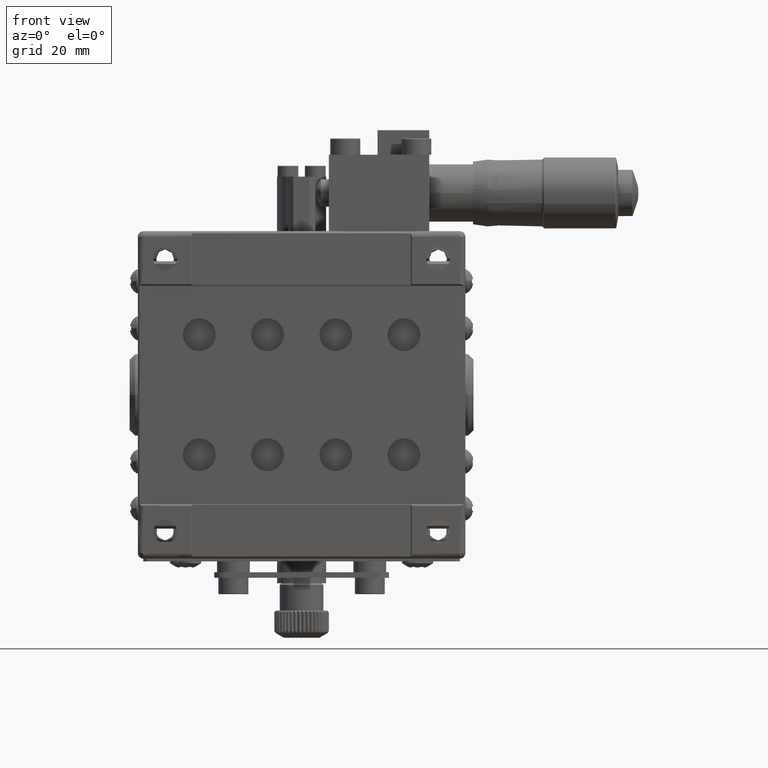
[diagram: clean part render]
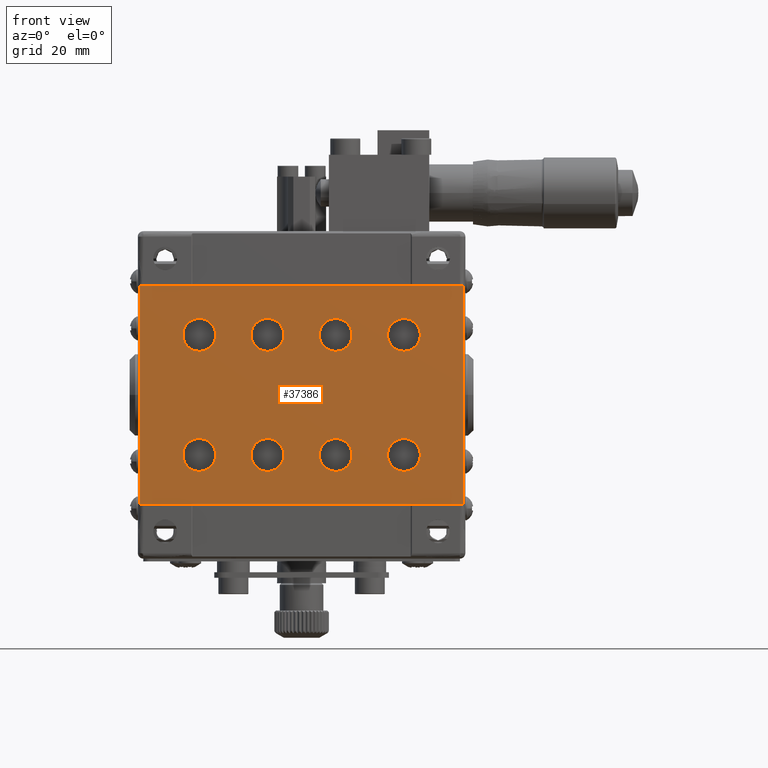
[diagram: same view with one face highlighted and labeled with its STEP entity id]
A machine part, front view. The second image highlights one B-rep face of the part: STEP entity #37386.
In plain terms, the highlighted planar face has unit normal (0, -1, 0).
Its self-contained STEP definition (entity closure, byte-faithful):
#117 = LINE ( 'NONE', #40002, #23402 ) ;
#331 = CARTESIAN_POINT ( 'NONE',  ( -7.723574979837233734, -99.70000000000001705, 8.356833977184933815 ) ) ;
#369 = CARTESIAN_POINT ( 'NONE',  ( 9.185563783559542728, -99.70000000000000284, -10.26500672246602441 ) ) ;
#417 = CARTESIAN_POINT ( 'NONE',  ( -6.249999999999970690, -99.70000000000003126, -8.000000000000000000 ) ) ;
#488 = CARTESIAN_POINT ( 'NONE',  ( 21.75000000000004263, -99.70000000000003126, 11.35355339059327306 ) ) ;
#577 = CARTESIAN_POINT ( 'NONE',  ( -19.48499327753394894, -99.70000000000004547, -13.93556378355951431 ) ) ;
#859 = CARTESIAN_POINT ( 'NONE',  ( -15.81443621644046438, -99.70000000000003126, 11.73499327753398092 ) ) ;
#1025 = CARTESIAN_POINT ( 'NONE',  ( -16.92157287525377640, -99.70000000000003126, -13.41421356237309404 ) ) ;
#1151 = CARTESIAN_POINT ( 'NONE',  ( 3.314436216440508787, -99.70000000000004547, 10.26500672246602974 ) ) ;
#1222 = CARTESIAN_POINT ( 'NONE',  ( -16.10683397718490539, -99.70000000000004547, 12.47357497983726660 ) ) ;
#1495 = CARTESIAN_POINT ( 'NONE',  ( 6.603553390593311256, -99.70000000000004547, -14.00000000000000000 ) ) ;
#1527 = CARTESIAN_POINT ( 'NONE',  ( -3.835786437626875323, -99.70000000000004547, 9.171572875253810153 ) ) ;
#1538 = CARTESIAN_POINT ( 'NONE',  ( -6.249999999999970690, -99.70000000000003126, -14.00000000000000000 ) ) ;
#1590 = VERTEX_POINT ( 'NONE', #56597 ) ;
#1607 = CARTESIAN_POINT ( 'NONE',  ( -15.81443621644045727, -99.70000000000004547, 10.26500672246602974 ) ) ;
#2012 = B_SPLINE_CURVE_WITH_KNOTS ( 'NONE', 3,
 ( #43037, #7400, #19417, #67055, #36459, #47723, #1222, #859, #6655, #54682, #1607, #42282, #18651, #12833, #25245, #24858, #13983, #41893 ),
 .UNSPECIFIED., .F., .F.,
 ( 4, 2, 2, 2, 2, 2, 2, 2, 4 ),
 ( 0.000000000000000000, 1.178097245096171974, 2.356194490192343949, 3.534291735288515923, 4.712388980384687898, 5.890486225480859872, 7.068583470577031846, 8.246680715673203821, 9.424777960769375795 ),
 .UNSPECIFIED. ) ;
#2014 = CARTESIAN_POINT ( 'NONE',  ( -8.893166022815044869, -99.70000000000004547, -12.47357497983725949 ) ) ;
#2028 = CARTESIAN_POINT ( 'NONE',  ( 21.39316602281510882, -99.70000000000003126, -9.526425020162736956 ) ) ;
#2306 = CARTESIAN_POINT ( 'NONE',  ( 4.421572875253843904, -99.70000000000003126, 8.585786437626904188 ) ) ;
#2555 = CARTESIAN_POINT ( 'NONE',  ( 16.92157287525384746, -99.70000000000003126, 8.585786437626904188 ) ) ;
#2691 = CARTESIAN_POINT ( 'NONE',  ( 5.515006722466055500, -99.70000000000001705, 13.93556378355952852 ) ) ;
#2746 = VERTEX_POINT ( 'NONE', #14860 ) ;
#4732 = CARTESIAN_POINT ( 'NONE',  ( -20.22357497983723107, -99.70000000000001705, 8.356833977184933815 ) ) ;
#4949 = CARTESIAN_POINT ( 'NONE',  ( 6.603553390593310368, -99.69999999999998863, 14.00000000000000000 ) ) ;
#5335 = CARTESIAN_POINT ( 'NONE',  ( 7.723574979837294130, -99.70000000000001705, 13.64316602281507329 ) ) ;
#5536 = B_SPLINE_CURVE_WITH_KNOTS ( 'NONE', 3,
 ( #50411, #8568, #50788, #49657, #38399, #74016, #2014, #20968, #44213, #20595, #62013, #68224, #8950, #9326, #32940, #32189, #67461, #15151 ),
 .UNSPECIFIED., .F., .F.,
 ( 4, 2, 2, 2, 2, 2, 2, 2, 4 ),
 ( -9.424777960769375795, -8.246680715673203821, -7.068583470577031846, -5.890486225480859872, -4.712388980384687898, -3.534291735288515923, -2.356194490192343949, -1.178097245096171974, 0.000000000000000000 ),
 .UNSPECIFIED. ) ;
#5602 = LINE ( 'NONE', #18716, #54547 ) ;
#5630 = CARTESIAN_POINT ( 'NONE',  ( -20.57842712474614899, -99.70000000000003126, -8.585786437626905965 ) ) ;
#5903 = CARTESIAN_POINT ( 'NONE',  ( 5.896446609406762462, -99.70000000000001705, -14.00000000000000178 ) ) ;
#6080 = CARTESIAN_POINT ( 'NONE',  ( -18.39644660940668786, -99.70000000000004547, -7.999999999999998224 ) ) ;
#6086 = CARTESIAN_POINT ( 'NONE',  ( 9.250000000000033751, -99.70000000000000284, 10.64644660940672516 ) ) ;
#6291 = CARTESIAN_POINT ( 'NONE',  ( 21.68556378355956582, -99.70000000000000284, 11.73499327753398092 ) ) ;
#6364 = EDGE_CURVE ( 'NONE', #39464, #17795, #41070, .T. ) ;
#6493 = CARTESIAN_POINT ( 'NONE',  ( 6.250000000000039968, -99.70000000000001705, 7.999999999999998224 ) ) ;
#6655 = CARTESIAN_POINT ( 'NONE',  ( -15.74999999999997513, -99.70000000000004547, 11.35355339059327306 ) ) ;
#6820 = CARTESIAN_POINT ( 'NONE',  ( -15.74999999999996803, -99.70000000000003126, -11.35355339059327662 ) ) ;
#6954 = CARTESIAN_POINT ( 'NONE',  ( 3.835786437626938827, -99.70000000000001705, 9.171572875253810153 ) ) ;
#7286 = CARTESIAN_POINT ( 'NONE',  ( 8.664213562373129562, -99.70000000000001705, -12.82842712474618807 ) ) ;
#7326 = CARTESIAN_POINT ( 'NONE',  ( -3.249999999999961364, -99.70000000000004547, -10.64644660940672694 ) ) ;
#7400 = CARTESIAN_POINT ( 'NONE',  ( -18.39644660940668786, -99.70000000000004547, 14.00000000000000000 ) ) ;
#7426 = EDGE_CURVE ( 'NONE', #17795, #39464, #32663, .T. ) ;
#7436 = CARTESIAN_POINT ( 'NONE',  ( 21.68556378355956227, -99.70000000000001705, -11.73499327753397026 ) ) ;
#7581 = CARTESIAN_POINT ( 'NONE',  ( -17.27642502016270498, -99.70000000000004547, -13.64316602281506263 ) ) ;
#7719 = CARTESIAN_POINT ( 'NONE',  ( -5.896446609406697625, -99.70000000000003126, -14.00000000000000000 ) ) ;
#7814 = CARTESIAN_POINT ( 'NONE',  ( 19.48499327753401644, -99.70000000000003126, -8.064436216440483918 ) ) ;
#8092 = CARTESIAN_POINT ( 'NONE',  ( 3.606833977184961793, -99.70000000000000284, 12.47357497983726837 ) ) ;
#8109 = CARTESIAN_POINT ( 'NONE',  ( 6.250000000000040856, -99.70000000000000284, -8.000000000000000000 ) ) ;
#8324 = CARTESIAN_POINT ( 'NONE',  ( 18.75000000000004263, -99.70000000000001705, 13.99999999999999822 ) ) ;
#8549 = CARTESIAN_POINT ( 'NONE',  ( -18.74999999999996092, -99.70000000000003126, 14.00000000000000178 ) ) ;
#8568 = CARTESIAN_POINT ( 'NONE',  ( -6.603553390593244643, -99.70000000000004547, -14.00000000000000000 ) ) ;
#8843 = AXIS2_PLACEMENT_3D ( 'NONE', #23067, #70307, #17239 ) ;
#8950 = CARTESIAN_POINT ( 'NONE',  ( -8.664213562373074495, -99.70000000000004547, -9.171572875253810153 ) ) ;
#9016 = CARTESIAN_POINT ( 'NONE',  ( -18.74999999999996092, -99.70000000000003126, -8.000000000000000000 ) ) ;
#9326 = CARTESIAN_POINT ( 'NONE',  ( -8.078427124746164978, -99.70000000000003126, -8.585786437626905965 ) ) ;
#9424 = ORIENTED_EDGE ( 'NONE', *, *, #69854, .T. ) ;
#9891 = VERTEX_POINT ( 'NONE', #8109 ) ;
#10141 = CARTESIAN_POINT ( 'NONE',  ( 18.01500672246606172, -99.70000000000001705, -8.064436216440480365 ) ) ;
#10348 = CARTESIAN_POINT ( 'NONE',  ( 8.078427124746223598, -99.70000000000000284, 8.585786437626904188 ) ) ;
#10712 = EDGE_CURVE ( 'NONE', #40363, #12772, #35742, .T. ) ;
#10900 = CARTESIAN_POINT ( 'NONE',  ( -21.16421356237306028, -99.70000000000004547, 12.82842712474619518 ) ) ;
#11288 = CARTESIAN_POINT ( 'NONE',  ( 18.01500672246606527, -99.70000000000003126, -13.93556378355951431 ) ) ;
#11315 = CARTESIAN_POINT ( 'NONE',  ( 5.896446609406763351, -99.70000000000003126, -7.999999999999998224 ) ) ;
#11370 = CARTESIAN_POINT ( 'NONE',  ( 18.75000000000004263, -99.70000000000001705, 7.999999999999998224 ) ) ;
#11423 = CARTESIAN_POINT ( 'NONE',  ( -21.68556378355949121, -99.70000000000003126, -11.73499327753397381 ) ) ;
#11923 = CARTESIAN_POINT ( 'NONE',  ( -8.893166022815041316, -99.70000000000003126, 12.47357497983726660 ) ) ;
#12078 = CARTESIAN_POINT ( 'NONE',  ( 19.10355339059331570, -99.69999999999998863, 14.00000000000000000 ) ) ;
#12620 = EDGE_LOOP ( 'NONE', ( #49858, #67771, #9424, #61883 ) ) ;
#12772 = VERTEX_POINT ( 'NONE', #8549 ) ;
#12833 = CARTESIAN_POINT ( 'NONE',  ( -16.92157287525377640, -99.70000000000003126, 8.585786437626904188 ) ) ;
#13099 = CARTESIAN_POINT ( 'NONE',  ( 7.723574979837294130, -99.70000000000001705, -8.356833977184935591 ) ) ;
#13144 = CARTESIAN_POINT ( 'NONE',  ( 4.776425020162768931, -99.70000000000001705, 13.64316602281507151 ) ) ;
#13253 = CARTESIAN_POINT ( 'NONE',  ( 21.16421356237312779, -99.70000000000001705, -12.82842712474618807 ) ) ;
#13983 = CARTESIAN_POINT ( 'NONE',  ( -18.39644660940668786, -99.70000000000004547, 8.000000000000003553 ) ) ;
#14021 = VERTEX_POINT ( 'NONE', #6493 ) ;
#14547 = CARTESIAN_POINT ( 'NONE',  ( -18.74999999999996092, -99.70000000000003126, -14.00000000000000000 ) ) ;
#14860 = CARTESIAN_POINT ( 'NONE',  ( 6.250000000000040856, -99.70000000000001705, 13.99999999999999822 ) ) ;
#14920 = CARTESIAN_POINT ( 'NONE',  ( 16.92157287525384746, -99.70000000000000284, 13.41421356237310114 ) ) ;
#15151 = CARTESIAN_POINT ( 'NONE',  ( -6.249999999999970690, -99.70000000000003126, -8.000000000000000000 ) ) ;
#15273 = B_SPLINE_CURVE_WITH_KNOTS ( 'NONE', 3,
 ( #67369, #49172, #66981, #31316, #2306, #6954, #49934, #1151, #19725, #54608, #61153, #8092, #54988, #66214, #13144, #2691, #42964, #43738 ),
 .UNSPECIFIED., .F., .F.,
 ( 4, 2, 2, 2, 2, 2, 2, 2, 4 ),
 ( 0.000000000000000000, 1.178097245096171086, 2.356194490192342172, 3.534291735288514147, 4.712388980384687009, 5.890486225480858984, 7.068583470577030958, 8.246680715673203821, 9.424777960769375795 ),
 .UNSPECIFIED. ) ;
#15322 = EDGE_LOOP ( 'NONE', ( #21815, #44609 ) ) ;
#16154 = CARTESIAN_POINT ( 'NONE',  ( 8.893166022815099936, -99.70000000000000284, 9.526425020162742285 ) ) ;
#16337 = CARTESIAN_POINT ( 'NONE',  ( 15.75000000000004263, -99.70000000000003126, -11.35355339059327839 ) ) ;
#16848 = CARTESIAN_POINT ( 'NONE',  ( -19.10355339059323754, -99.70000000000004547, -14.00000000000000000 ) ) ;
#17063 = CARTESIAN_POINT ( 'NONE',  ( -4.776425020162709423, -99.70000000000000284, -8.356833977184933815 ) ) ;
#17094 = CARTESIAN_POINT ( 'NONE',  ( -19.48499327753395605, -99.70000000000004547, 13.93556378355952674 ) ) ;
#17098 = B_SPLINE_CURVE_WITH_KNOTS ( 'NONE', 3,
 ( #29875, #5903, #70957, #41884, #75609, #41140, #23331, #46950, #24098, #41514, #46182, #34540, #71330, #59319, #70580, #58950, #11315, #69805 ),
 .UNSPECIFIED., .F., .F.,
 ( 4, 2, 2, 2, 2, 2, 2, 2, 4 ),
 ( 0.000000000000000000, 1.178097245096171086, 2.356194490192342172, 3.534291735288514147, 4.712388980384687009, 5.890486225480858984, 7.068583470577030958, 8.246680715673203821, 9.424777960769375795 ),
 .UNSPECIFIED. ) ;
#17239 = DIRECTION ( 'NONE',  ( 0.000000000000000000, 0.000000000000000000, 1.000000000000000000 ) ) ;
#17487 = CARTESIAN_POINT ( 'NONE',  ( 16.92157287525384746, -99.70000000000003126, -13.41421356237309581 ) ) ;
#17525 = CARTESIAN_POINT ( 'NONE',  ( 21.39316602281510882, -99.70000000000003126, 12.47357497983726660 ) ) ;
#17697 = CARTESIAN_POINT ( 'NONE',  ( 8.664213562373129562, -99.70000000000000284, 12.82842712474619518 ) ) ;
#17795 = VERTEX_POINT ( 'NONE', #23667 ) ;
#17905 = CARTESIAN_POINT ( 'NONE',  ( 19.48499327753401644, -99.70000000000003126, 13.93556378355953029 ) ) ;
#17937 = LINE ( 'NONE', #46630, #21027 ) ;
#18069 = CARTESIAN_POINT ( 'NONE',  ( -16.10683397718490539, -99.70000000000004547, -9.526425020162736956 ) ) ;
#18123 = CARTESIAN_POINT ( 'NONE',  ( -6.603553390593246419, -99.70000000000004547, 14.00000000000000533 ) ) ;
#18171 = DIRECTION ( 'NONE',  ( 1.000000000000000000, 1.992650513571868801E-16, -0.000000000000000000 ) ) ;
#18368 = CARTESIAN_POINT ( 'NONE',  ( -21.68556378355948766, -99.70000000000004547, -10.26500672246602619 ) ) ;
#18537 = CARTESIAN_POINT ( 'NONE',  ( 8.078427124746223598, -99.70000000000000284, -13.41421356237309404 ) ) ;
#18547 = EDGE_CURVE ( 'NONE', #2746, #14021, #32151, .T. ) ;
#18567 = CARTESIAN_POINT ( 'NONE',  ( -4.776425020162712087, -99.70000000000004547, 8.356833977184939144 ) ) ;
#18651 = CARTESIAN_POINT ( 'NONE',  ( -16.33578643762687577, -99.70000000000004547, 9.171572875253808377 ) ) ;
#18716 = CARTESIAN_POINT ( 'NONE',  ( 29.71414284285429730, -99.70000000000001705, -24.00120000000000431 ) ) ;
#18805 = EDGE_CURVE ( 'NONE', #22624, #32292, #60679, .T. ) ;
#19296 = CARTESIAN_POINT ( 'NONE',  ( 6.984993277534009337, -99.70000000000003126, -8.064436216440483918 ) ) ;
#19417 = CARTESIAN_POINT ( 'NONE',  ( -18.01500672246599422, -99.70000000000004547, 13.93556378355953029 ) ) ;
#19572 = ORIENTED_EDGE ( 'NONE', *, *, #10712, .T. ) ;
#19598 = LINE ( 'NONE', #24005, #25166 ) ;
#19680 = CARTESIAN_POINT ( 'NONE',  ( 8.664213562373129562, -99.70000000000000284, -9.171572875253811929 ) ) ;
#19725 = CARTESIAN_POINT ( 'NONE',  ( 3.250000000000031086, -99.70000000000003126, 10.64644660940672694 ) ) ;
#19840 = CARTESIAN_POINT ( 'NONE',  ( 18.75000000000004263, -99.70000000000000284, -13.99999999999999822 ) ) ;
#20120 = CARTESIAN_POINT ( 'NONE',  ( -3.606833977184905393, -99.70000000000003126, -12.47357497983725594 ) ) ;
#20595 = CARTESIAN_POINT ( 'NONE',  ( -9.249999999999973355, -99.70000000000003126, -10.64644660940672516 ) ) ;
#20613 = CARTESIAN_POINT ( 'NONE',  ( 19.10355339059331570, -99.69999999999998863, -7.999999999999998224 ) ) ;
#20683 = EDGE_CURVE ( 'NONE', #36415, #41815, #30870, .T. ) ;
#20756 = CARTESIAN_POINT ( 'NONE',  ( 18.39644660940677312, -99.70000000000004547, 14.00000000000000533 ) ) ;
#20968 = CARTESIAN_POINT ( 'NONE',  ( -9.185563783559494766, -99.70000000000003126, -11.73499327753397381 ) ) ;
#20984 = CARTESIAN_POINT ( 'NONE',  ( 21.75000000000003553, -99.70000000000000284, -11.35355339059327662 ) ) ;
#21027 = VECTOR ( 'NONE', #53199, 1000.000000000000000 ) ;
#21125 = CARTESIAN_POINT ( 'NONE',  ( 17.27642502016277959, -99.70000000000001705, 13.64316602281507151 ) ) ;
#21815 = ORIENTED_EDGE ( 'NONE', *, *, #18805, .T. ) ;
#21976 = CARTESIAN_POINT ( 'NONE',  ( 9.250000000000031974, -99.70000000000003126, 11.35355339059327306 ) ) ;
#22360 = CARTESIAN_POINT ( 'NONE',  ( 6.250000000000039968, -99.70000000000001705, 7.999999999999998224 ) ) ;
#22537 = CARTESIAN_POINT ( 'NONE',  ( 18.39644660940677312, -99.70000000000004547, -8.000000000000000000 ) ) ;
#22624 = VERTEX_POINT ( 'NONE', #11370 ) ;
#22914 = CARTESIAN_POINT ( 'NONE',  ( -19.10355339059323754, -99.70000000000004547, 8.000000000000005329 ) ) ;
#22924 = CARTESIAN_POINT ( 'NONE',  ( 16.10683397718496934, -99.70000000000003126, -12.47357497983725949 ) ) ;
#23067 = CARTESIAN_POINT ( 'NONE',  ( 35.65817141142515112, -99.70000000000001705, -24.00120000000000431 ) ) ;
#23301 = CARTESIAN_POINT ( 'NONE',  ( -18.74999999999996092, -99.70000000000003126, 14.00000000000000178 ) ) ;
#23331 = CARTESIAN_POINT ( 'NONE',  ( 3.606833977184961793, -99.70000000000003126, -12.47357497983725949 ) ) ;
#23350 = CARTESIAN_POINT ( 'NONE',  ( 21.16421356237313489, -99.70000000000000284, 12.82842712474619518 ) ) ;
#23402 = VECTOR ( 'NONE', #47735, 1000.000000000000000 ) ;
#23521 = CARTESIAN_POINT ( 'NONE',  ( 6.250000000000040856, -99.70000000000001705, 13.99999999999999822 ) ) ;
#23667 = CARTESIAN_POINT ( 'NONE',  ( 18.75000000000004263, -99.70000000000001705, -7.999999999999996447 ) ) ;
#23950 = CARTESIAN_POINT ( 'NONE',  ( -6.249999999999970690, -99.70000000000003126, 14.00000000000000178 ) ) ;
#24005 = CARTESIAN_POINT ( 'NONE',  ( 35.65817141142515112, -99.70000000000001705, -20.00000000000000000 ) ) ;
#24098 = CARTESIAN_POINT ( 'NONE',  ( 3.250000000000031086, -99.70000000000003126, -11.35355339059327839 ) ) ;
#24116 = CARTESIAN_POINT ( 'NONE',  ( 21.39316602281511592, -99.70000000000000284, 9.526425020162742285 ) ) ;
#24342 = CARTESIAN_POINT ( 'NONE',  ( -8.664213562373074495, -99.70000000000003126, 9.171572875253808377 ) ) ;
#24377 = CARTESIAN_POINT ( 'NONE',  ( 6.250000000000040856, -99.70000000000000284, -8.000000000000000000 ) ) ;
#24655 = CARTESIAN_POINT ( 'NONE',  ( -18.01500672246599777, -99.70000000000004547, -13.93556378355951431 ) ) ;
#24746 = CARTESIAN_POINT ( 'NONE',  ( 6.250000000000039968, -99.70000000000000284, -13.99999999999999822 ) ) ;
#24858 = CARTESIAN_POINT ( 'NONE',  ( -18.01500672246599777, -99.70000000000004547, 8.064436216440491023 ) ) ;
#25044 = CARTESIAN_POINT ( 'NONE',  ( -18.01500672246599422, -99.70000000000004547, -8.064436216440483918 ) ) ;
#25166 = VECTOR ( 'NONE', #18171, 1000.000000000000000 ) ;
#25177 = CARTESIAN_POINT ( 'NONE',  ( -5.515006722466002209, -99.70000000000003126, -13.93556378355951253 ) ) ;
#25245 = CARTESIAN_POINT ( 'NONE',  ( -17.27642502016270498, -99.70000000000004547, 8.356833977184937368 ) ) ;
#25667 = CARTESIAN_POINT ( 'NONE',  ( 21.68556378355956582, -99.70000000000000284, -10.26500672246602441 ) ) ;
#25718 = CARTESIAN_POINT ( 'NONE',  ( -6.249999999999970690, -99.70000000000003126, 8.000000000000003553 ) ) ;
#25868 = B_SPLINE_CURVE_WITH_KNOTS ( 'NONE', 3,
 ( #70973, #12078, #17905, #41899, #41531, #23350, #17525, #6291, #488, #29893, #29120, #24116, #76008, #65531, #34949, #35709, #69822, #47729 ),
 .UNSPECIFIED., .F., .F.,
 ( 4, 2, 2, 2, 2, 2, 2, 2, 4 ),
 ( 0.000000000000000000, 1.178097245096171974, 2.356194490192343949, 3.534291735288515923, 4.712388980384687898, 5.890486225480859872, 7.068583470577031846, 8.246680715673203821, 9.424777960769375795 ),
 .UNSPECIFIED. ) ;
#25923 = EDGE_CURVE ( 'NONE', #28915, #39409, #5602, .T. ) ;
#25934 = CARTESIAN_POINT ( 'NONE',  ( -4.421572875253780843, -99.70000000000004547, -13.41421356237309581 ) ) ;
#26189 = CARTESIAN_POINT ( 'NONE',  ( 15.81443621644051944, -99.70000000000001705, 11.73499327753397736 ) ) ;
#28154 = CARTESIAN_POINT ( 'NONE',  ( 7.723574979837295018, -99.70000000000001705, 8.356833977184937368 ) ) ;
#28317 = CARTESIAN_POINT ( 'NONE',  ( -20.57842712474615254, -99.70000000000004547, 8.585786437626904188 ) ) ;
#28327 = CARTESIAN_POINT ( 'NONE',  ( 16.10683397718497289, -99.70000000000000284, -9.526425020162735180 ) ) ;
#28456 = CARTESIAN_POINT ( 'NONE',  ( -18.74999999999996092, -99.70000000000003126, -8.000000000000000000 ) ) ;
#28642 = EDGE_CURVE ( 'NONE', #28915, #1590, #17937, .T. ) ;
#28659 = CARTESIAN_POINT ( 'NONE',  ( -4.776425020162709423, -99.70000000000000284, 13.64316602281506974 ) ) ;
#28696 = CARTESIAN_POINT ( 'NONE',  ( -21.74999999999997158, -99.70000000000004547, 10.64644660940672694 ) ) ;
#28712 = CARTESIAN_POINT ( 'NONE',  ( 16.33578643762694327, -99.70000000000000284, -12.82842712474618985 ) ) ;
#28915 = VERTEX_POINT ( 'NONE', #41477 ) ;
#29120 = CARTESIAN_POINT ( 'NONE',  ( 21.68556378355956227, -99.70000000000001705, 10.26500672246602974 ) ) ;
#29217 = CARTESIAN_POINT ( 'NONE',  ( -21.74999999999997158, -99.70000000000004547, -11.35355339059327839 ) ) ;
#29440 = ORIENTED_EDGE ( 'NONE', *, *, #48672, .T. ) ;
#29465 = CARTESIAN_POINT ( 'NONE',  ( 18.75000000000004263, -99.70000000000001705, -7.999999999999996447 ) ) ;
#29632 = B_SPLINE_CURVE_WITH_KNOTS ( 'NONE', 3,
 ( #65002, #30104, #53390, #331, #36305, #24342, #30844, #76614, #48319, #41376, #42504, #11923, #35556, #48707, #59190, #35929, #18123, #23950 ),
 .UNSPECIFIED., .F., .F.,
 ( 4, 2, 2, 2, 2, 2, 2, 2, 4 ),
 ( -9.424777960769375795, -8.246680715673203821, -7.068583470577031846, -5.890486225480859872, -4.712388980384687898, -3.534291735288515923, -2.356194490192343949, -1.178097245096171974, 0.000000000000000000 ),
 .UNSPECIFIED. ) ;
#29698 = EDGE_CURVE ( 'NONE', #9891, #61758, #65475, .T. ) ;
#29875 = CARTESIAN_POINT ( 'NONE',  ( 6.250000000000039968, -99.70000000000000284, -13.99999999999999822 ) ) ;
#29893 = CARTESIAN_POINT ( 'NONE',  ( 21.75000000000003553, -99.70000000000000284, 10.64644660940672516 ) ) ;
#30049 = CARTESIAN_POINT ( 'NONE',  ( -16.33578643762687221, -99.70000000000003126, -9.171572875253811929 ) ) ;
#30066 = EDGE_CURVE ( 'NONE', #56363, #72225, #47785, .T. ) ;
#30104 = CARTESIAN_POINT ( 'NONE',  ( -6.603553390593244643, -99.70000000000004547, 8.000000000000005329 ) ) ;
#30111 = EDGE_LOOP ( 'NONE', ( #37774, #34133 ) ) ;
#30425 = CARTESIAN_POINT ( 'NONE',  ( -15.81443621644045727, -99.70000000000004547, -11.73499327753397026 ) ) ;
#30540 = CARTESIAN_POINT ( 'NONE',  ( -3.314436216440455496, -99.70000000000004547, 10.26500672246602974 ) ) ;
#30844 = CARTESIAN_POINT ( 'NONE',  ( -8.893166022815044869, -99.70000000000004547, 9.526425020162740509 ) ) ;
#30870 = B_SPLINE_CURVE_WITH_KNOTS ( 'NONE', 3,
 ( #40297, #39907, #63528, #28659, #34081, #57738, #51929, #75529, #75919, #41066, #30540, #42199, #1527, #46884, #18567, #53075, #48387, #70503 ),
 .UNSPECIFIED., .F., .F.,
 ( 4, 2, 2, 2, 2, 2, 2, 2, 4 ),
 ( 0.000000000000000000, 1.178097245096171530, 2.356194490192343061, 3.534291735288515479, 4.712388980384687898, 5.890486225480859872, 7.068583470577032735, 8.246680715673203821, 9.424777960769375795 ),
 .UNSPECIFIED. ) ;
#31316 = CARTESIAN_POINT ( 'NONE',  ( 4.776425020162768043, -99.70000000000001705, 8.356833977184935591 ) ) ;
#31896 = EDGE_LOOP ( 'NONE', ( #19572, #66068 ) ) ;
#32151 = B_SPLINE_CURVE_WITH_KNOTS ( 'NONE', 3,
 ( #23521, #4949, #47144, #5335, #35516, #17697, #41328, #59146, #21976, #6086, #69220, #16154, #63415, #10348, #28154, #51810, #75405, #22360 ),
 .UNSPECIFIED., .F., .F.,
 ( 4, 2, 2, 2, 2, 2, 2, 2, 4 ),
 ( 0.000000000000000000, 1.178097245096171974, 2.356194490192343949, 3.534291735288515923, 4.712388980384687898, 5.890486225480859872, 7.068583470577031846, 8.246680715673203821, 9.424777960769375795 ),
 .UNSPECIFIED. ) ;
#32189 = CARTESIAN_POINT ( 'NONE',  ( -6.984993277533951606, -99.70000000000004547, -8.064436216440480365 ) ) ;
#32292 = VERTEX_POINT ( 'NONE', #8324 ) ;
#32663 = B_SPLINE_CURVE_WITH_KNOTS ( 'NONE', 3,
 ( #38038, #20613, #7814, #43068, #50426, #44227, #2028, #25667, #74030, #20984, #7436, #49278, #13253, #72888, #72510, #43466, #60490, #19840 ),
 .UNSPECIFIED., .F., .F.,
 ( 4, 2, 2, 2, 2, 2, 2, 2, 4 ),
 ( 0.000000000000000000, 1.178097245096171974, 2.356194490192343949, 3.534291735288515923, 4.712388980384687898, 5.890486225480859872, 7.068583470577031846, 8.246680715673203821, 9.424777960769375795 ),
 .UNSPECIFIED. ) ;
#32709 = ORIENTED_EDGE ( 'NONE', *, *, #58638, .T. ) ;
#32940 = CARTESIAN_POINT ( 'NONE',  ( -7.723574979837234622, -99.70000000000004547, -8.356833977184933815 ) ) ;
#34070 = CARTESIAN_POINT ( 'NONE',  ( -29.71414284285426533, -99.70000000000003126, -20.00000000000000000 ) ) ;
#34081 = CARTESIAN_POINT ( 'NONE',  ( -4.421572875253780843, -99.70000000000003126, 13.41421356237309936 ) ) ;
#34133 = ORIENTED_EDGE ( 'NONE', *, *, #20683, .T. ) ;
#34467 = EDGE_CURVE ( 'NONE', #12772, #40363, #2012, .T. ) ;
#34522 = CARTESIAN_POINT ( 'NONE',  ( 17.27642502016277248, -99.70000000000001705, -13.64316602281506263 ) ) ;
#34540 = CARTESIAN_POINT ( 'NONE',  ( 3.606833977184961793, -99.70000000000000284, -9.526425020162735180 ) ) ;
#34949 = CARTESIAN_POINT ( 'NONE',  ( 20.22357497983730212, -99.70000000000001705, 8.356833977184937368 ) ) ;
#35037 = CARTESIAN_POINT ( 'NONE',  ( -19.10355339059323398, -99.70000000000004547, -8.000000000000000000 ) ) ;
#35337 = ORIENTED_EDGE ( 'NONE', *, *, #65907, .T. ) ;
#35438 = FACE_BOUND ( 'NONE', #67051, .T. ) ;
#35516 = CARTESIAN_POINT ( 'NONE',  ( 8.078427124746225374, -99.70000000000003126, 13.41421356237310114 ) ) ;
#35556 = CARTESIAN_POINT ( 'NONE',  ( -8.664213562373074495, -99.70000000000004547, 12.82842712474619518 ) ) ;
#35632 = CARTESIAN_POINT ( 'NONE',  ( -4.421572875253780843, -99.70000000000003126, -8.585786437626905965 ) ) ;
#35709 = CARTESIAN_POINT ( 'NONE',  ( 19.48499327753402000, -99.70000000000001705, 8.064436216440491023 ) ) ;
#35742 = B_SPLINE_CURVE_WITH_KNOTS ( 'NONE', 3,
 ( #69384, #22914, #58155, #4732, #28317, #46542, #52743, #76351, #28696, #75571, #63967, #58918, #10900, #52360, #75960, #17094, #70165, #23301 ),
 .UNSPECIFIED., .F., .F.,
 ( 4, 2, 2, 2, 2, 2, 2, 2, 4 ),
 ( -9.424777960769375795, -8.246680715673203821, -7.068583470577031846, -5.890486225480859872, -4.712388980384687898, -3.534291735288515923, -2.356194490192343949, -1.178097245096171974, 0.000000000000000000 ),
 .UNSPECIFIED. ) ;
#35929 = CARTESIAN_POINT ( 'NONE',  ( -6.984993277533951606, -99.70000000000004547, 13.93556378355952674 ) ) ;
#35968 = CARTESIAN_POINT ( 'NONE',  ( 9.185563783559546280, -99.70000000000001705, -11.73499327753397026 ) ) ;
#36175 = CARTESIAN_POINT ( 'NONE',  ( -20.22357497983723107, -99.70000000000001705, -13.64316602281506263 ) ) ;
#36251 = CARTESIAN_POINT ( 'NONE',  ( -18.74999999999996092, -99.70000000000003126, -8.000000000000000000 ) ) ;
#36305 = CARTESIAN_POINT ( 'NONE',  ( -8.078427124746166754, -99.70000000000004547, 8.585786437626904188 ) ) ;
#36343 = CARTESIAN_POINT ( 'NONE',  ( 6.984993277534009337, -99.70000000000001705, -13.93556378355951431 ) ) ;
#36415 = VERTEX_POINT ( 'NONE', #37413 ) ;
#36459 = CARTESIAN_POINT ( 'NONE',  ( -16.92157287525378351, -99.70000000000004547, 13.41421356237310114 ) ) ;
#36770 = CARTESIAN_POINT ( 'NONE',  ( -3.606833977184904949, -99.70000000000004547, -9.526425020162738733 ) ) ;
#37008 = CARTESIAN_POINT ( 'NONE',  ( -15.81443621644046438, -99.70000000000003126, -10.26500672246602441 ) ) ;
#37100 = CARTESIAN_POINT ( 'NONE',  ( 8.078427124746225374, -99.70000000000003126, -8.585786437626905965 ) ) ;
#37140 = CARTESIAN_POINT ( 'NONE',  ( -3.249999999999961808, -99.70000000000003126, -11.35355339059327484 ) ) ;
#37345 = CARTESIAN_POINT ( 'NONE',  ( -6.249999999999970690, -99.70000000000003126, -14.00000000000000000 ) ) ;
#37386 = ADVANCED_FACE ( 'NONE', ( #63341, #64882, #63721, #46304, #52511, #35438, #46691, #59071, #57539 ), #76107, .T. ) ;
#37413 = CARTESIAN_POINT ( 'NONE',  ( -6.249999999999970690, -99.70000000000003126, 14.00000000000000178 ) ) ;
#37444 = ORIENTED_EDGE ( 'NONE', *, *, #30066, .T. ) ;
#37774 = ORIENTED_EDGE ( 'NONE', *, *, #76339, .T. ) ;
#37790 = CARTESIAN_POINT ( 'NONE',  ( 15.75000000000003908, -99.70000000000000284, 11.35355339059327306 ) ) ;
#38038 = CARTESIAN_POINT ( 'NONE',  ( 18.75000000000004263, -99.70000000000001705, -7.999999999999996447 ) ) ;
#38173 = CARTESIAN_POINT ( 'NONE',  ( 16.10683397718496934, -99.70000000000003126, 9.526425020162740509 ) ) ;
#38399 = CARTESIAN_POINT ( 'NONE',  ( -8.078427124746166754, -99.70000000000004547, -13.41421356237309581 ) ) ;
#38494 = VERTEX_POINT ( 'NONE', #417 ) ;
#39315 = CARTESIAN_POINT ( 'NONE',  ( 18.75000000000004263, -99.70000000000001705, 13.99999999999999822 ) ) ;
#39409 = VERTEX_POINT ( 'NONE', #47297 ) ;
#39464 = VERTEX_POINT ( 'NONE', #46532 ) ;
#39907 = CARTESIAN_POINT ( 'NONE',  ( -5.896446609406695849, -99.70000000000004547, 14.00000000000000533 ) ) ;
#39959 = CARTESIAN_POINT ( 'NONE',  ( 15.81443621644051944, -99.70000000000000284, -11.73499327753397381 ) ) ;
#39962 = ORIENTED_EDGE ( 'NONE', *, *, #7426, .T. ) ;
#40002 = CARTESIAN_POINT ( 'NONE',  ( -29.71414284285426533, -99.70000000000003126, -24.00120000000000431 ) ) ;
#40297 = CARTESIAN_POINT ( 'NONE',  ( -6.249999999999970690, -99.70000000000003126, 14.00000000000000178 ) ) ;
#40363 = VERTEX_POINT ( 'NONE', #49803 ) ;
#40480 = CARTESIAN_POINT ( 'NONE',  ( -20.57842712474615254, -99.70000000000004547, -13.41421356237309581 ) ) ;
#40733 = CARTESIAN_POINT ( 'NONE',  ( 17.27642502016277959, -99.70000000000001705, -8.356833977184933815 ) ) ;
#41066 = CARTESIAN_POINT ( 'NONE',  ( -3.249999999999961808, -99.70000000000003126, 10.64644660940672516 ) ) ;
#41070 = B_SPLINE_CURVE_WITH_KNOTS ( 'NONE', 3,
 ( #63981, #76359, #11288, #34522, #17487, #28712, #22924, #39959, #16337, #58930, #46553, #28327, #51986, #58165, #40733, #10141, #22537, #29465 ),
 .UNSPECIFIED., .F., .F.,
 ( 4, 2, 2, 2, 2, 2, 2, 2, 4 ),
 ( 0.000000000000000000, 1.178097245096171974, 2.356194490192343949, 3.534291735288515923, 4.712388980384687898, 5.890486225480859872, 7.068583470577031846, 8.246680715673203821, 9.424777960769375795 ),
 .UNSPECIFIED. ) ;
#41140 = CARTESIAN_POINT ( 'NONE',  ( 3.835786437626938827, -99.70000000000001705, -12.82842712474618985 ) ) ;
#41244 = CARTESIAN_POINT ( 'NONE',  ( -21.16421356237305673, -99.70000000000003126, -12.82842712474618985 ) ) ;
#41328 = CARTESIAN_POINT ( 'NONE',  ( 8.893166022815099936, -99.70000000000003126, 12.47357497983726660 ) ) ;
#41340 = ORIENTED_EDGE ( 'NONE', *, *, #73131, .T. ) ;
#41376 = CARTESIAN_POINT ( 'NONE',  ( -9.249999999999973355, -99.70000000000003126, 11.35355339059327306 ) ) ;
#41477 = CARTESIAN_POINT ( 'NONE',  ( 29.71414284285429375, -99.70000000000001705, 20.00000000000000000 ) ) ;
#41514 = CARTESIAN_POINT ( 'NONE',  ( 3.250000000000030642, -99.70000000000000284, -10.64644660940672516 ) ) ;
#41531 = CARTESIAN_POINT ( 'NONE',  ( 20.57842712474623070, -99.70000000000003126, 13.41421356237310114 ) ) ;
#41815 = VERTEX_POINT ( 'NONE', #25718 ) ;
#41884 = CARTESIAN_POINT ( 'NONE',  ( 4.776425020162768043, -99.70000000000001705, -13.64316602281506441 ) ) ;
#41893 = CARTESIAN_POINT ( 'NONE',  ( -18.74999999999996092, -99.70000000000003126, 8.000000000000003553 ) ) ;
#41899 = CARTESIAN_POINT ( 'NONE',  ( 20.22357497983729502, -99.70000000000001705, 13.64316602281507329 ) ) ;
#42172 = CARTESIAN_POINT ( 'NONE',  ( 7.723574979837295018, -99.70000000000001705, -13.64316602281506263 ) ) ;
#42199 = CARTESIAN_POINT ( 'NONE',  ( -3.606833977184905393, -99.70000000000003126, 9.526425020162738733 ) ) ;
#42282 = CARTESIAN_POINT ( 'NONE',  ( -16.10683397718490184, -99.70000000000003126, 9.526425020162742285 ) ) ;
#42504 = CARTESIAN_POINT ( 'NONE',  ( -9.185563783559500095, -99.70000000000004547, 11.73499327753397736 ) ) ;
#42907 = EDGE_CURVE ( 'NONE', #47433, #1590, #117, .T. ) ;
#42964 = CARTESIAN_POINT ( 'NONE',  ( 5.896446609406763351, -99.70000000000003126, 14.00000000000000355 ) ) ;
#43037 = CARTESIAN_POINT ( 'NONE',  ( -18.74999999999996092, -99.70000000000003126, 14.00000000000000178 ) ) ;
#43068 = CARTESIAN_POINT ( 'NONE',  ( 20.22357497983729502, -99.70000000000001705, -8.356833977184935591 ) ) ;
#43344 = CARTESIAN_POINT ( 'NONE',  ( -3.835786437626875767, -99.70000000000004547, -9.171572875253811929 ) ) ;
#43466 = CARTESIAN_POINT ( 'NONE',  ( 19.48499327753402000, -99.70000000000001705, -13.93556378355951431 ) ) ;
#43605 = CARTESIAN_POINT ( 'NONE',  ( 16.33578643762694327, -99.70000000000001705, 12.82842712474619518 ) ) ;
#43738 = CARTESIAN_POINT ( 'NONE',  ( 6.250000000000040856, -99.70000000000001705, 13.99999999999999822 ) ) ;
#44213 = CARTESIAN_POINT ( 'NONE',  ( -9.249999999999975131, -99.70000000000004547, -11.35355339059327839 ) ) ;
#44227 = CARTESIAN_POINT ( 'NONE',  ( 21.16421356237313489, -99.70000000000000284, -9.171572875253811929 ) ) ;
#44367 = CARTESIAN_POINT ( 'NONE',  ( 15.75000000000004263, -99.70000000000003126, 10.64644660940672694 ) ) ;
#44530 = VERTEX_POINT ( 'NONE', #37345 ) ;
#44609 = ORIENTED_EDGE ( 'NONE', *, *, #70356, .T. ) ;
#44753 = CARTESIAN_POINT ( 'NONE',  ( 18.01500672246606172, -99.70000000000001705, 13.93556378355952674 ) ) ;
#46182 = CARTESIAN_POINT ( 'NONE',  ( 3.314436216440508343, -99.70000000000001705, -10.26500672246602619 ) ) ;
#46304 = FACE_BOUND ( 'NONE', #49951, .T. ) ;
#46532 = CARTESIAN_POINT ( 'NONE',  ( 18.75000000000004263, -99.70000000000000284, -13.99999999999999822 ) ) ;
#46542 = CARTESIAN_POINT ( 'NONE',  ( -21.16421356237305673, -99.70000000000003126, 9.171572875253808377 ) ) ;
#46553 = CARTESIAN_POINT ( 'NONE',  ( 15.81443621644051944, -99.70000000000001705, -10.26500672246602619 ) ) ;
#46630 = CARTESIAN_POINT ( 'NONE',  ( 35.65817141142515112, -99.70000000000001705, 20.00000000000000000 ) ) ;
#46691 = FACE_BOUND ( 'NONE', #52745, .T. ) ;
#46884 = CARTESIAN_POINT ( 'NONE',  ( -4.421572875253780843, -99.70000000000004547, 8.585786437626905965 ) ) ;
#46950 = CARTESIAN_POINT ( 'NONE',  ( 3.314436216440508787, -99.70000000000004547, -11.73499327753397203 ) ) ;
#47055 = CARTESIAN_POINT ( 'NONE',  ( -21.39316602281503066, -99.70000000000003126, -9.526425020162735180 ) ) ;
#47144 = CARTESIAN_POINT ( 'NONE',  ( 6.984993277534009337, -99.70000000000003126, 13.93556378355953029 ) ) ;
#47273 = CARTESIAN_POINT ( 'NONE',  ( -5.515006722466002209, -99.70000000000003126, -8.064436216440483918 ) ) ;
#47297 = CARTESIAN_POINT ( 'NONE',  ( 29.71414284285429375, -99.70000000000001705, -20.00000000000000000 ) ) ;
#47433 = VERTEX_POINT ( 'NONE', #34070 ) ;
#47515 = CARTESIAN_POINT ( 'NONE',  ( -17.27642502016269788, -99.70000000000001705, -8.356833977184935591 ) ) ;
#47723 = CARTESIAN_POINT ( 'NONE',  ( -16.33578643762687221, -99.70000000000003126, 12.82842712474619518 ) ) ;
#47729 = CARTESIAN_POINT ( 'NONE',  ( 18.75000000000004263, -99.70000000000001705, 7.999999999999998224 ) ) ;
#47735 = DIRECTION ( 'NONE',  ( 0.000000000000000000, 0.000000000000000000, 1.000000000000000000 ) ) ;
#47785 = B_SPLINE_CURVE_WITH_KNOTS ( 'NONE', 3,
 ( #36251, #6080, #25044, #47515, #71140, #30049, #18069, #37008, #65702, #6820, #30425, #54098, #60631, #1025, #7581, #24655, #50561, #14547 ),
 .UNSPECIFIED., .F., .F.,
 ( 4, 2, 2, 2, 2, 2, 2, 2, 4 ),
 ( 0.000000000000000000, 1.178097245096171974, 2.356194490192343949, 3.534291735288515923, 4.712388980384687898, 5.890486225480859872, 7.068583470577031846, 8.246680715673203821, 9.424777960769375795 ),
 .UNSPECIFIED. ) ;
#47986 = CARTESIAN_POINT ( 'NONE',  ( 6.603553390593310368, -99.69999999999998863, -7.999999999999998224 ) ) ;
#48319 = CARTESIAN_POINT ( 'NONE',  ( -9.249999999999975131, -99.70000000000004547, 10.64644660940672694 ) ) ;
#48387 = CARTESIAN_POINT ( 'NONE',  ( -5.896446609406697625, -99.70000000000003126, 8.000000000000003553 ) ) ;
#48672 = EDGE_CURVE ( 'NONE', #44530, #38494, #5536, .T. ) ;
#48707 = CARTESIAN_POINT ( 'NONE',  ( -8.078427124746164978, -99.70000000000003126, 13.41421356237310114 ) ) ;
#49172 = CARTESIAN_POINT ( 'NONE',  ( 5.896446609406762462, -99.70000000000001705, 8.000000000000005329 ) ) ;
#49278 = CARTESIAN_POINT ( 'NONE',  ( 21.39316602281511592, -99.70000000000000284, -12.47357497983725949 ) ) ;
#49418 = CARTESIAN_POINT ( 'NONE',  ( 18.39644660940676602, -99.69999999999998863, 8.000000000000005329 ) ) ;
#49657 = CARTESIAN_POINT ( 'NONE',  ( -7.723574979837233734, -99.70000000000001705, -13.64316602281506263 ) ) ;
#49803 = CARTESIAN_POINT ( 'NONE',  ( -18.74999999999996092, -99.70000000000003126, 8.000000000000003553 ) ) ;
#49858 = ORIENTED_EDGE ( 'NONE', *, *, #28642, .T. ) ;
#49934 = CARTESIAN_POINT ( 'NONE',  ( 3.606833977184961793, -99.70000000000003126, 9.526425020162740509 ) ) ;
#49951 = EDGE_LOOP ( 'NONE', ( #29440, #32709 ) ) ;
#50187 = CARTESIAN_POINT ( 'NONE',  ( 18.75000000000004263, -99.70000000000001705, 7.999999999999998224 ) ) ;
#50411 = CARTESIAN_POINT ( 'NONE',  ( -6.249999999999970690, -99.70000000000003126, -14.00000000000000000 ) ) ;
#50426 = CARTESIAN_POINT ( 'NONE',  ( 20.57842712474623070, -99.70000000000003126, -8.585786437626905965 ) ) ;
#50561 = CARTESIAN_POINT ( 'NONE',  ( -18.39644660940668786, -99.70000000000004547, -14.00000000000000000 ) ) ;
#50565 = CARTESIAN_POINT ( 'NONE',  ( -18.74999999999996092, -99.70000000000003126, -14.00000000000000000 ) ) ;
#50788 = CARTESIAN_POINT ( 'NONE',  ( -6.984993277533952494, -99.70000000000004547, -13.93556378355951431 ) ) ;
#51810 = CARTESIAN_POINT ( 'NONE',  ( 6.984993277534009337, -99.70000000000001705, 8.064436216440491023 ) ) ;
#51929 = CARTESIAN_POINT ( 'NONE',  ( -3.606833977184904949, -99.70000000000004547, 12.47357497983726837 ) ) ;
#51986 = CARTESIAN_POINT ( 'NONE',  ( 16.33578643762694327, -99.70000000000001705, -9.171572875253810153 ) ) ;
#52360 = CARTESIAN_POINT ( 'NONE',  ( -20.57842712474614899, -99.70000000000003126, 13.41421356237310114 ) ) ;
#52511 = FACE_BOUND ( 'NONE', #30111, .T. ) ;
#52743 = CARTESIAN_POINT ( 'NONE',  ( -21.39316602281503066, -99.70000000000004547, 9.526425020162740509 ) ) ;
#52745 = EDGE_LOOP ( 'NONE', ( #74467, #76619 ) ) ;
#53075 = CARTESIAN_POINT ( 'NONE',  ( -5.515006722466002209, -99.70000000000003126, 8.064436216440489247 ) ) ;
#53083 = CARTESIAN_POINT ( 'NONE',  ( -6.249999999999970690, -99.70000000000003126, -8.000000000000000000 ) ) ;
#53199 = DIRECTION ( 'NONE',  ( -1.000000000000000000, -1.992650513571868801E-16, 0.000000000000000000 ) ) ;
#53390 = CARTESIAN_POINT ( 'NONE',  ( -6.984993277533952494, -99.70000000000004547, 8.064436216440492800 ) ) ;
#53637 = CARTESIAN_POINT ( 'NONE',  ( -18.74999999999996092, -99.70000000000003126, -14.00000000000000000 ) ) ;
#54098 = CARTESIAN_POINT ( 'NONE',  ( -16.10683397718490184, -99.70000000000003126, -12.47357497983725949 ) ) ;
#54185 = CARTESIAN_POINT ( 'NONE',  ( 9.250000000000031974, -99.70000000000003126, -10.64644660940672694 ) ) ;
#54360 = DIRECTION ( 'NONE',  ( -0.000000000000000000, -0.000000000000000000, -1.000000000000000000 ) ) ;
#54547 = VECTOR ( 'NONE', #54360, 1000.000000000000000 ) ;
#54608 = CARTESIAN_POINT ( 'NONE',  ( 3.250000000000030642, -99.70000000000000284, 11.35355339059327306 ) ) ;
#54682 = CARTESIAN_POINT ( 'NONE',  ( -15.74999999999996803, -99.70000000000003126, 10.64644660940672516 ) ) ;
#54988 = CARTESIAN_POINT ( 'NONE',  ( 3.835786437626937051, -99.70000000000001705, 12.82842712474619518 ) ) ;
#55070 = B_SPLINE_CURVE_WITH_KNOTS ( 'NONE', 3,
 ( #53637, #16848, #577, #36175, #40480, #41244, #59797, #11423, #29217, #71065, #18368, #47055, #58295, #5630, #75722, #64107, #35037, #28456 ),
 .UNSPECIFIED., .F., .F.,
 ( 4, 2, 2, 2, 2, 2, 2, 2, 4 ),
 ( -9.424777960769375795, -8.246680715673203821, -7.068583470577031846, -5.890486225480859872, -4.712388980384687898, -3.534291735288515923, -2.356194490192343949, -1.178097245096171974, 0.000000000000000000 ),
 .UNSPECIFIED. ) ;
#55237 = CARTESIAN_POINT ( 'NONE',  ( 15.81443621644051944, -99.70000000000000284, 10.26500672246602974 ) ) ;
#55373 = CARTESIAN_POINT ( 'NONE',  ( -3.835786437626875323, -99.70000000000004547, -12.82842712474618807 ) ) ;
#56363 = VERTEX_POINT ( 'NONE', #9016 ) ;
#56597 = CARTESIAN_POINT ( 'NONE',  ( -29.71414284285424046, -99.70000000000000284, 19.99999999999999289 ) ) ;
#57539 = FACE_BOUND ( 'NONE', #15322, .T. ) ;
#57738 = CARTESIAN_POINT ( 'NONE',  ( -3.835786437626875767, -99.70000000000004547, 12.82842712474619695 ) ) ;
#58155 = CARTESIAN_POINT ( 'NONE',  ( -19.48499327753394894, -99.70000000000004547, 8.064436216440492800 ) ) ;
#58165 = CARTESIAN_POINT ( 'NONE',  ( 16.92157287525384746, -99.70000000000000284, -8.585786437626905965 ) ) ;
#58295 = CARTESIAN_POINT ( 'NONE',  ( -21.16421356237306028, -99.70000000000004547, -9.171572875253810153 ) ) ;
#58638 = EDGE_CURVE ( 'NONE', #38494, #44530, #66911, .T. ) ;
#58645 = EDGE_CURVE ( 'NONE', #14021, #2746, #15273, .T. ) ;
#58918 = CARTESIAN_POINT ( 'NONE',  ( -21.39316602281503066, -99.70000000000003126, 12.47357497983726660 ) ) ;
#58930 = CARTESIAN_POINT ( 'NONE',  ( 15.75000000000003908, -99.70000000000000284, -10.64644660940672516 ) ) ;
#58950 = CARTESIAN_POINT ( 'NONE',  ( 5.515006722466055500, -99.70000000000001705, -8.064436216440483918 ) ) ;
#59071 = FACE_BOUND ( 'NONE', #72211, .T. ) ;
#59146 = CARTESIAN_POINT ( 'NONE',  ( 9.185563783559542728, -99.70000000000000284, 11.73499327753398092 ) ) ;
#59190 = CARTESIAN_POINT ( 'NONE',  ( -7.723574979837234622, -99.70000000000004547, 13.64316602281507151 ) ) ;
#59319 = CARTESIAN_POINT ( 'NONE',  ( 4.421572875253847457, -99.69999999999998863, -8.585786437626904188 ) ) ;
#59797 = CARTESIAN_POINT ( 'NONE',  ( -21.39316602281503066, -99.70000000000004547, -12.47357497983725949 ) ) ;
#60335 = CARTESIAN_POINT ( 'NONE',  ( 8.893166022815099936, -99.70000000000000284, -12.47357497983725949 ) ) ;
#60380 = CARTESIAN_POINT ( 'NONE',  ( -3.314436216440456384, -99.70000000000004547, -10.26500672246602797 ) ) ;
#60490 = CARTESIAN_POINT ( 'NONE',  ( 19.10355339059332280, -99.70000000000004547, -14.00000000000000000 ) ) ;
#60631 = CARTESIAN_POINT ( 'NONE',  ( -16.33578643762687577, -99.70000000000004547, -12.82842712474618807 ) ) ;
#60679 = B_SPLINE_CURVE_WITH_KNOTS ( 'NONE', 3,
 ( #50187, #49418, #74549, #73807, #2555, #68753, #38173, #55237, #44367, #37790, #26189, #73030, #43605, #14920, #21125, #44753, #20756, #39315 ),
 .UNSPECIFIED., .F., .F.,
 ( 4, 2, 2, 2, 2, 2, 2, 2, 4 ),
 ( 0.000000000000000000, 1.178097245096171974, 2.356194490192343949, 3.534291735288515923, 4.712388980384687898, 5.890486225480859872, 7.068583470577031846, 8.246680715673203821, 9.424777960769375795 ),
 .UNSPECIFIED. ) ;
#60771 = CARTESIAN_POINT ( 'NONE',  ( -4.776425020162712087, -99.70000000000004547, -13.64316602281506619 ) ) ;
#61153 = CARTESIAN_POINT ( 'NONE',  ( 3.314436216440508343, -99.70000000000001705, 11.73499327753397736 ) ) ;
#61396 = CARTESIAN_POINT ( 'NONE',  ( 6.250000000000039968, -99.70000000000000284, -13.99999999999999822 ) ) ;
#61758 = VERTEX_POINT ( 'NONE', #61396 ) ;
#61883 = ORIENTED_EDGE ( 'NONE', *, *, #25923, .F. ) ;
#62013 = CARTESIAN_POINT ( 'NONE',  ( -9.185563783559500095, -99.70000000000004547, -10.26500672246602619 ) ) ;
#63341 = FACE_OUTER_BOUND ( 'NONE', #12620, .T. ) ;
#63415 = CARTESIAN_POINT ( 'NONE',  ( 8.664213562373129562, -99.70000000000001705, 9.171572875253808377 ) ) ;
#63528 = CARTESIAN_POINT ( 'NONE',  ( -5.515006722466002209, -99.70000000000003126, 13.93556378355952496 ) ) ;
#63721 = FACE_BOUND ( 'NONE', #31896, .T. ) ;
#63967 = CARTESIAN_POINT ( 'NONE',  ( -21.68556378355948766, -99.70000000000004547, 11.73499327753397736 ) ) ;
#63981 = CARTESIAN_POINT ( 'NONE',  ( 18.75000000000004263, -99.70000000000000284, -13.99999999999999822 ) ) ;
#64107 = CARTESIAN_POINT ( 'NONE',  ( -19.48499327753395605, -99.70000000000004547, -8.064436216440480365 ) ) ;
#64882 = FACE_BOUND ( 'NONE', #75254, .T. ) ;
#65002 = CARTESIAN_POINT ( 'NONE',  ( -6.249999999999970690, -99.70000000000003126, 8.000000000000003553 ) ) ;
#65475 = B_SPLINE_CURVE_WITH_KNOTS ( 'NONE', 3,
 ( #24377, #47986, #19296, #13099, #37100, #19680, #65793, #369, #54185, #71600, #35968, #60335, #7286, #18537, #42172, #36343, #1495, #24746 ),
 .UNSPECIFIED., .F., .F.,
 ( 4, 2, 2, 2, 2, 2, 2, 2, 4 ),
 ( 0.000000000000000000, 1.178097245096171974, 2.356194490192343949, 3.534291735288515923, 4.712388980384687898, 5.890486225480859872, 7.068583470577031846, 8.246680715673203821, 9.424777960769375795 ),
 .UNSPECIFIED. ) ;
#65531 = CARTESIAN_POINT ( 'NONE',  ( 20.57842712474622715, -99.70000000000000284, 8.585786437626904188 ) ) ;
#65702 = CARTESIAN_POINT ( 'NONE',  ( -15.74999999999997513, -99.70000000000004547, -10.64644660940672694 ) ) ;
#65793 = CARTESIAN_POINT ( 'NONE',  ( 8.893166022815099936, -99.70000000000003126, -9.526425020162736956 ) ) ;
#65907 = EDGE_CURVE ( 'NONE', #61758, #9891, #17098, .T. ) ;
#66068 = ORIENTED_EDGE ( 'NONE', *, *, #34467, .T. ) ;
#66214 = CARTESIAN_POINT ( 'NONE',  ( 4.421572875253847457, -99.69999999999998863, 13.41421356237309936 ) ) ;
#66376 = ORIENTED_EDGE ( 'NONE', *, *, #29698, .T. ) ;
#66592 = CARTESIAN_POINT ( 'NONE',  ( -3.314436216440455496, -99.70000000000004547, -11.73499327753397026 ) ) ;
#66911 = B_SPLINE_CURVE_WITH_KNOTS ( 'NONE', 3,
 ( #53083, #70133, #47273, #17063, #35632, #43344, #36770, #60380, #7326, #37140, #66592, #20120, #55373, #25934, #60771, #25177, #7719, #1538 ),
 .UNSPECIFIED., .F., .F.,
 ( 4, 2, 2, 2, 2, 2, 2, 2, 4 ),
 ( 0.000000000000000000, 1.178097245096171530, 2.356194490192343061, 3.534291735288515479, 4.712388980384687898, 5.890486225480859872, 7.068583470577032735, 8.246680715673203821, 9.424777960769375795 ),
 .UNSPECIFIED. ) ;
#66981 = CARTESIAN_POINT ( 'NONE',  ( 5.515006722466054612, -99.70000000000003126, 8.064436216440491023 ) ) ;
#67051 = EDGE_LOOP ( 'NONE', ( #35337, #66376 ) ) ;
#67055 = CARTESIAN_POINT ( 'NONE',  ( -17.27642502016269788, -99.70000000000001705, 13.64316602281507329 ) ) ;
#67369 = CARTESIAN_POINT ( 'NONE',  ( 6.250000000000039968, -99.70000000000001705, 7.999999999999998224 ) ) ;
#67461 = CARTESIAN_POINT ( 'NONE',  ( -6.603553390593246419, -99.70000000000004547, -8.000000000000000000 ) ) ;
#67771 = ORIENTED_EDGE ( 'NONE', *, *, #42907, .F. ) ;
#68224 = CARTESIAN_POINT ( 'NONE',  ( -8.893166022815041316, -99.70000000000003126, -9.526425020162735180 ) ) ;
#68753 = CARTESIAN_POINT ( 'NONE',  ( 16.33578643762694327, -99.70000000000000284, 9.171572875253808377 ) ) ;
#69220 = CARTESIAN_POINT ( 'NONE',  ( 9.185563783559546280, -99.70000000000001705, 10.26500672246602974 ) ) ;
#69384 = CARTESIAN_POINT ( 'NONE',  ( -18.74999999999996092, -99.70000000000003126, 8.000000000000003553 ) ) ;
#69469 = ORIENTED_EDGE ( 'NONE', *, *, #6364, .T. ) ;
#69805 = CARTESIAN_POINT ( 'NONE',  ( 6.250000000000040856, -99.70000000000000284, -8.000000000000000000 ) ) ;
#69822 = CARTESIAN_POINT ( 'NONE',  ( 19.10355339059332280, -99.70000000000004547, 8.000000000000003553 ) ) ;
#69854 = EDGE_CURVE ( 'NONE', #47433, #39409, #19598, .T. ) ;
#70133 = CARTESIAN_POINT ( 'NONE',  ( -5.896446609406695849, -99.70000000000004547, -8.000000000000001776 ) ) ;
#70165 = CARTESIAN_POINT ( 'NONE',  ( -19.10355339059323398, -99.70000000000004547, 14.00000000000000533 ) ) ;
#70307 = DIRECTION ( 'NONE',  ( 1.992650513571868801E-16, -1.000000000000000000, 0.000000000000000000 ) ) ;
#70356 = EDGE_CURVE ( 'NONE', #32292, #22624, #25868, .T. ) ;
#70503 = CARTESIAN_POINT ( 'NONE',  ( -6.249999999999970690, -99.70000000000003126, 8.000000000000003553 ) ) ;
#70580 = CARTESIAN_POINT ( 'NONE',  ( 4.776425020162768931, -99.70000000000001705, -8.356833977184933815 ) ) ;
#70957 = CARTESIAN_POINT ( 'NONE',  ( 5.515006722466054612, -99.70000000000003126, -13.93556378355951608 ) ) ;
#70973 = CARTESIAN_POINT ( 'NONE',  ( 18.75000000000004263, -99.70000000000001705, 13.99999999999999822 ) ) ;
#71065 = CARTESIAN_POINT ( 'NONE',  ( -21.74999999999997513, -99.70000000000003126, -10.64644660940672516 ) ) ;
#71140 = CARTESIAN_POINT ( 'NONE',  ( -16.92157287525378351, -99.70000000000004547, -8.585786437626905965 ) ) ;
#71330 = CARTESIAN_POINT ( 'NONE',  ( 3.835786437626937051, -99.70000000000001705, -9.171572875253810153 ) ) ;
#71600 = CARTESIAN_POINT ( 'NONE',  ( 9.250000000000033751, -99.70000000000000284, -11.35355339059327662 ) ) ;
#72211 = EDGE_LOOP ( 'NONE', ( #69469, #39962 ) ) ;
#72225 = VERTEX_POINT ( 'NONE', #50565 ) ;
#72510 = CARTESIAN_POINT ( 'NONE',  ( 20.22357497983730212, -99.70000000000001705, -13.64316602281506263 ) ) ;
#72888 = CARTESIAN_POINT ( 'NONE',  ( 20.57842712474622715, -99.70000000000000284, -13.41421356237309404 ) ) ;
#73030 = CARTESIAN_POINT ( 'NONE',  ( 16.10683397718497289, -99.70000000000000284, 12.47357497983726660 ) ) ;
#73131 = EDGE_CURVE ( 'NONE', #72225, #56363, #55070, .T. ) ;
#73807 = CARTESIAN_POINT ( 'NONE',  ( 17.27642502016277248, -99.70000000000001705, 8.356833977184933815 ) ) ;
#74016 = CARTESIAN_POINT ( 'NONE',  ( -8.664213562373074495, -99.70000000000003126, -12.82842712474618985 ) ) ;
#74030 = CARTESIAN_POINT ( 'NONE',  ( 21.75000000000004263, -99.70000000000003126, -10.64644660940672694 ) ) ;
#74467 = ORIENTED_EDGE ( 'NONE', *, *, #58645, .T. ) ;
#74549 = CARTESIAN_POINT ( 'NONE',  ( 18.01500672246606527, -99.70000000000003126, 8.064436216440492800 ) ) ;
#75254 = EDGE_LOOP ( 'NONE', ( #41340, #37444 ) ) ;
#75405 = CARTESIAN_POINT ( 'NONE',  ( 6.603553390593311256, -99.70000000000004547, 8.000000000000003553 ) ) ;
#75529 = CARTESIAN_POINT ( 'NONE',  ( -3.314436216440456384, -99.70000000000004547, 11.73499327753398092 ) ) ;
#75571 = CARTESIAN_POINT ( 'NONE',  ( -21.74999999999997513, -99.70000000000003126, 11.35355339059327306 ) ) ;
#75609 = CARTESIAN_POINT ( 'NONE',  ( 4.421572875253843904, -99.70000000000003126, -13.41421356237309581 ) ) ;
#75722 = CARTESIAN_POINT ( 'NONE',  ( -20.22357497983723107, -99.70000000000004547, -8.356833977184933815 ) ) ;
#75919 = CARTESIAN_POINT ( 'NONE',  ( -3.249999999999961364, -99.70000000000004547, 11.35355339059327306 ) ) ;
#75960 = CARTESIAN_POINT ( 'NONE',  ( -20.22357497983723107, -99.70000000000004547, 13.64316602281507151 ) ) ;
#76008 = CARTESIAN_POINT ( 'NONE',  ( 21.16421356237312779, -99.70000000000001705, 9.171572875253808377 ) ) ;
#76107 = PLANE ( 'NONE',  #8843 ) ;
#76339 = EDGE_CURVE ( 'NONE', #41815, #36415, #29632, .T. ) ;
#76351 = CARTESIAN_POINT ( 'NONE',  ( -21.68556378355949121, -99.70000000000003126, 10.26500672246602974 ) ) ;
#76359 = CARTESIAN_POINT ( 'NONE',  ( 18.39644660940676602, -99.69999999999998863, -14.00000000000000000 ) ) ;
#76614 = CARTESIAN_POINT ( 'NONE',  ( -9.185563783559494766, -99.70000000000003126, 10.26500672246602974 ) ) ;
#76619 = ORIENTED_EDGE ( 'NONE', *, *, #18547, .T. ) ;